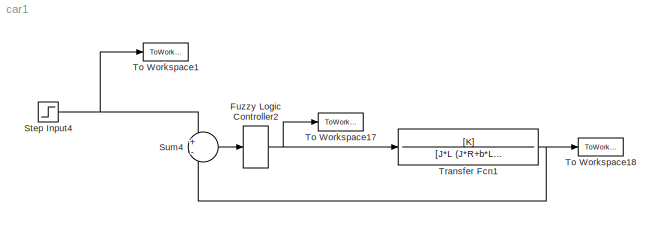
MODEL car1
KIND model
BLOCK [S-Function] Fuzzy Logic Controller2
  FunctionName = sffis
  Parameters = fismatrix
  Ports = [1, 1]
  SID = 91
BLOCK [Step] Step Input4
  SID = 90
  Time = 0
BLOCK [Sum] Sum4
  IconShape = round
  Inputs = +-
  Ports = [2, 1]
  SID = 92
BLOCK [ToWorkspace] To Workspace1
  MaxDataPoints = 100000
  Ports = [1]
  SID = 95
  VariableName = r_fuzzy
BLOCK [ToWorkspace] To Workspace17
  MaxDataPoints = 100000
  Ports = [1]
  SID = 93
  VariableName = u_fuzzy
BLOCK [ToWorkspace] To Workspace18
  MaxDataPoints = 100000
  Ports = [1]
  SID = 94
  VariableName = y_fuzzy
BLOCK [TransferFcn] Transfer Fcn1
  Denominator = [J*L (J*R+b*L) K^2+R*b]
  Numerator = [K]
  SID = 89
NET Fuzzy Logic Controller2:1 -> To Workspace17:1, Transfer Fcn1:1
NET Step Input4:1 -> Sum4:1, To Workspace1:1
LINE Sum4:1 -> Fuzzy Logic Controller2:1
NET Transfer Fcn1:1 -> Sum4:2, To Workspace18:1
note: NET lines group one-source signal fan-out (src -> all destinations, sorted); 1:1 wires keep LINE
